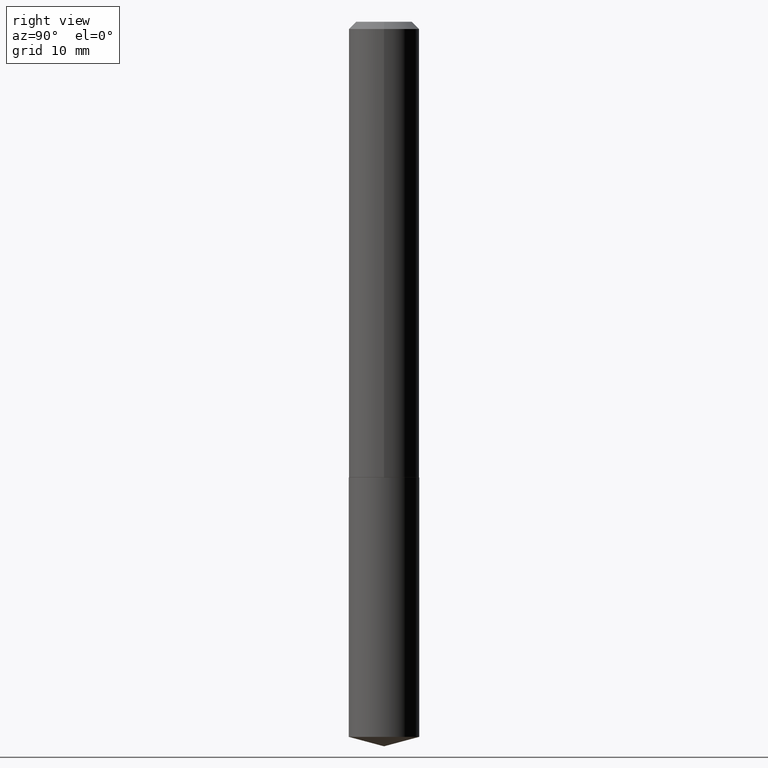
[diagram: clean part render]
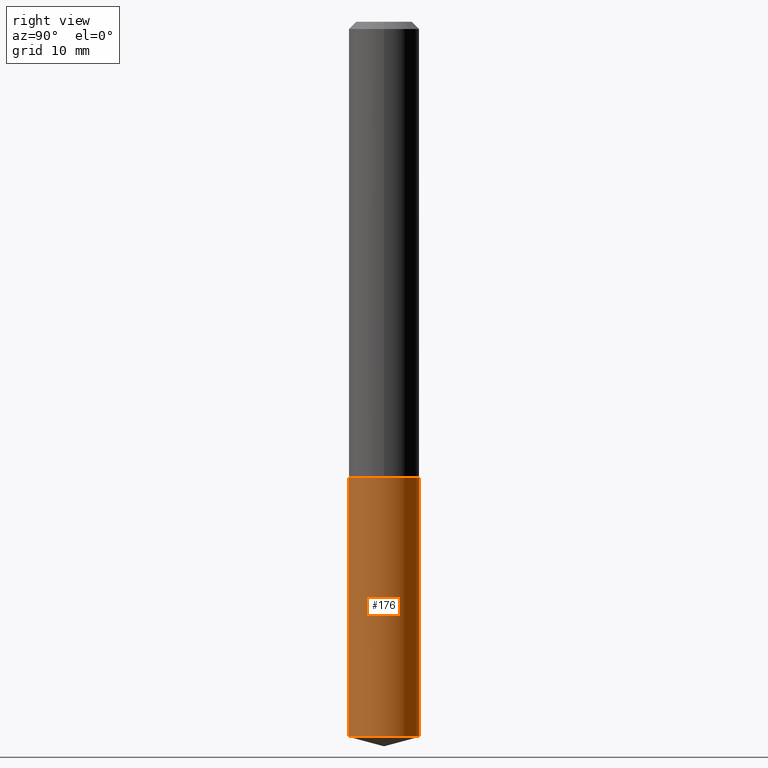
[diagram: same view with one face highlighted and labeled with its STEP entity id]
A machine part, right view. The second image highlights one B-rep face of the part: STEP entity #176.
In plain terms, the highlighted cylindrical surface (edge-blend (fillet) strip) has radius 3.8494 mm, axis along (-0, 0, 1).
Its self-contained STEP definition (entity closure, byte-faithful):
#7 = CARTESIAN_POINT ( 'NONE',  ( 1.076827516044506507E-15, 0.1515499999999892211, -3.069592299887064168 ) ) ;
#16 = CARTESIAN_POINT ( 'NONE',  ( 1.076827516044506902E-15, 0.1515499999999931624, -1.956600000000000339 ) ) ;
#18 = LINE ( 'NONE', #269, #386 ) ;
#21 = VECTOR ( 'NONE', #144, 39.37007874015748143 ) ;
#24 = CARTESIAN_POINT ( 'NONE',  ( 4.784804266181837868E-29, -6.831432387580497556E-15, -1.956599999999999895 ) ) ;
#27 = CIRCLE ( 'NONE', #190, 0.1515499999999999903 ) ;
#31 = VERTEX_POINT ( 'NONE', #16 ) ;
#33 = EDGE_CURVE ( 'NONE', #228, #31, #385, .T. ) ;
#44 = AXIS2_PLACEMENT_3D ( 'NONE', #109, #376, #289 ) ;
#52 = DIRECTION ( 'NONE',  ( -2.445415479178305919E-29, 3.491557706152111532E-15, 1.000000000000000000 ) ) ;
#54 = CARTESIAN_POINT ( 'NONE',  ( 1.076827516044479489E-15, 0.1515499999999931624, -1.956600000000000339 ) ) ;
#56 = DIRECTION ( 'NONE',  ( -2.445415479178305639E-29, 3.491557706152111532E-15, 1.000000000000000000 ) ) ;
#70 = EDGE_CURVE ( 'NONE', #198, #31, #27, .T. ) ;
#83 = CYLINDRICAL_SURFACE ( 'NONE', #294, 0.1515499999999999903 ) ;
#85 = DIRECTION ( 'NONE',  ( -6.982962677686265922E-15, -1.000000000000000000, 3.605210153301568306E-15 ) ) ;
#95 = VERTEX_POINT ( 'NONE', #115 ) ;
#104 = ORIENTED_EDGE ( 'NONE', *, *, #70, .F. ) ;
#109 = CARTESIAN_POINT ( 'NONE',  ( 7.506532864531928318E-29, -1.071750922913913919E-14, -3.069592299887063724 ) ) ;
#115 = CARTESIAN_POINT ( 'NONE',  ( -1.058267993803278190E-15, -0.1515500000000106762, -3.069592299887063280 ) ) ;
#133 = CARTESIAN_POINT ( 'NONE',  ( -1.058267993803305800E-15, -0.1515500000000068181, -1.956599999999999229 ) ) ;
#144 = DIRECTION ( 'NONE',  ( -2.445415479178305639E-29, 3.491557706152111532E-15, 1.000000000000000000 ) ) ;
#156 = EDGE_CURVE ( 'NONE', #95, #198, #18, .T. ) ;
#167 = ORIENTED_EDGE ( 'NONE', *, *, #352, .T. ) ;
#176 = ADVANCED_FACE ( 'NONE', ( #388 ), #83, .T. ) ;
#190 = AXIS2_PLACEMENT_3D ( 'NONE', #383, #52, #360 ) ;
#198 = VERTEX_POINT ( 'NONE', #133 ) ;
#203 = DIRECTION ( 'NONE',  ( -2.445415479178305919E-29, 3.491557706152111532E-15, 1.000000000000000000 ) ) ;
#218 = EDGE_LOOP ( 'NONE', ( #167, #334, #104, #346 ) ) ;
#228 = VERTEX_POINT ( 'NONE', #7 ) ;
#259 = CIRCLE ( 'NONE', #44, 0.1515499999999999625 ) ;
#269 = CARTESIAN_POINT ( 'NONE',  ( -1.058267993803305800E-15, -0.1515500000000068181, -1.956599999999999229 ) ) ;
#289 = DIRECTION ( 'NONE',  ( -6.982962677686265922E-15, -1.000000000000000000, 3.605210153301569095E-15 ) ) ;
#294 = AXIS2_PLACEMENT_3D ( 'NONE', #24, #203, #85 ) ;
#334 = ORIENTED_EDGE ( 'NONE', *, *, #33, .T. ) ;
#346 = ORIENTED_EDGE ( 'NONE', *, *, #156, .F. ) ;
#352 = EDGE_CURVE ( 'NONE', #95, #228, #259, .T. ) ;
#360 = DIRECTION ( 'NONE',  ( -6.982962677686265922E-15, -1.000000000000000000, 3.605210153301568306E-15 ) ) ;
#376 = DIRECTION ( 'NONE',  ( -2.445415479178305919E-29, 3.491557706152111532E-15, 1.000000000000000000 ) ) ;
#383 = CARTESIAN_POINT ( 'NONE',  ( 4.784804266181837868E-29, -6.831432387580497556E-15, -1.956599999999999895 ) ) ;
#385 = LINE ( 'NONE', #54, #21 ) ;
#386 = VECTOR ( 'NONE', #56, 39.37007874015748143 ) ;
#388 = FACE_OUTER_BOUND ( 'NONE', #218, .T. ) ;